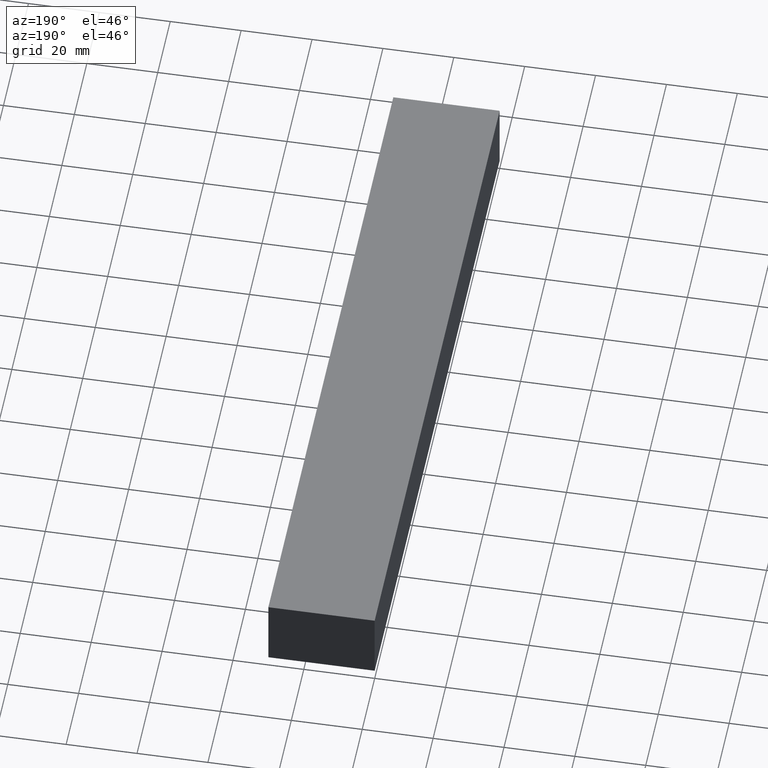
[diagram: clean part render]
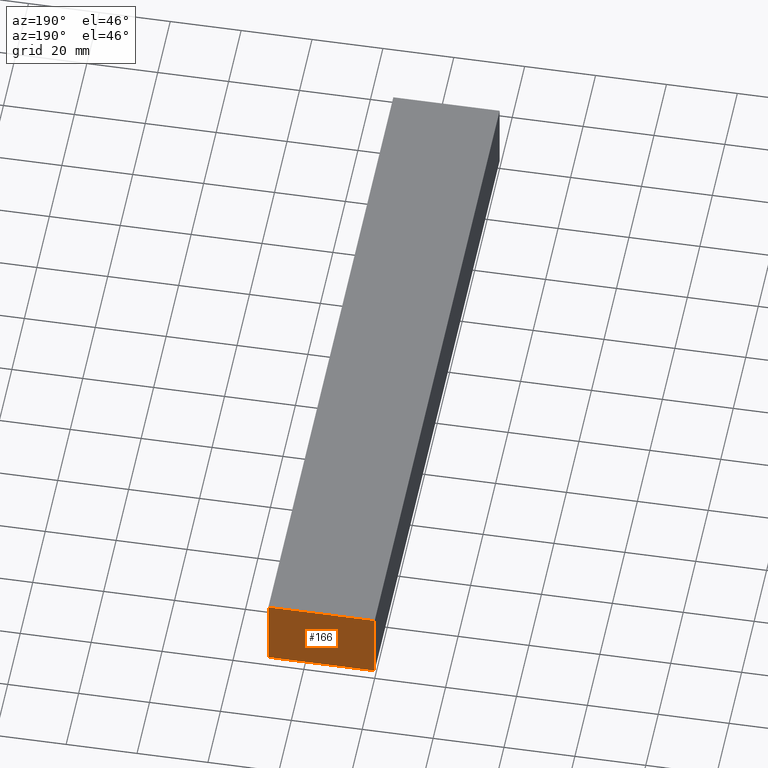
[diagram: same view with one face highlighted and labeled with its STEP entity id]
A machine part, auxiliary view. The second image highlights one B-rep face of the part: STEP entity #166.
In plain terms, the highlighted planar face has unit normal (0, 1, 0).
Its self-contained STEP definition (entity closure, byte-faithful):
#4 = CARTESIAN_POINT ( 'NONE',  ( 30.00000000000000000, 200.0000000000000000, -10.00000000000000000 ) ) ;
#7 = ORIENTED_EDGE ( 'NONE', *, *, #164, .F. ) ;
#8 = CARTESIAN_POINT ( 'NONE',  ( 30.00000000000000000, 200.0000000000000000, -10.00000000000000000 ) ) ;
#9 = DIRECTION ( 'NONE',  ( 0.0000000000000000000, 0.0000000000000000000, 1.000000000000000000 ) ) ;
#10 = LINE ( 'NONE', #123, #193 ) ;
#22 = DIRECTION ( 'NONE',  ( -1.000000000000000000, 0.0000000000000000000, 0.0000000000000000000 ) ) ;
#24 = CARTESIAN_POINT ( 'NONE',  ( 30.00000000000000000, 200.0000000000000000, -10.00000000000000000 ) ) ;
#44 = DIRECTION ( 'NONE',  ( 0.0000000000000000000, 0.0000000000000000000, 1.000000000000000000 ) ) ;
#49 = VECTOR ( 'NONE', #22, 1000.000000000000000 ) ;
#59 = CARTESIAN_POINT ( 'NONE',  ( 0.0000000000000000000, 200.0000000000000000, 10.00000000000000000 ) ) ;
#71 = VERTEX_POINT ( 'NONE', #163 ) ;
#73 = PLANE ( 'NONE',  #80 ) ;
#74 = EDGE_CURVE ( 'NONE', #71, #100, #129, .T. ) ;
#80 = AXIS2_PLACEMENT_3D ( 'NONE', #8, #149, #9 ) ;
#82 = ORIENTED_EDGE ( 'NONE', *, *, #135, .T. ) ;
#83 = VECTOR ( 'NONE', #175, 1000.000000000000000 ) ;
#92 = VERTEX_POINT ( 'NONE', #216 ) ;
#94 = CARTESIAN_POINT ( 'NONE',  ( 30.00000000000000000, 200.0000000000000000, 10.00000000000000000 ) ) ;
#98 = LINE ( 'NONE', #128, #235 ) ;
#100 = VERTEX_POINT ( 'NONE', #59 ) ;
#123 = CARTESIAN_POINT ( 'NONE',  ( 0.0000000000000000000, 200.0000000000000000, -10.00000000000000000 ) ) ;
#128 = CARTESIAN_POINT ( 'NONE',  ( 30.00000000000000000, 200.0000000000000000, -10.00000000000000000 ) ) ;
#129 = LINE ( 'NONE', #94, #83 ) ;
#135 = EDGE_CURVE ( 'NONE', #158, #92, #234, .T. ) ;
#140 = FACE_OUTER_BOUND ( 'NONE', #199, .T. ) ;
#149 = DIRECTION ( 'NONE',  ( 0.0000000000000000000, 1.000000000000000000, -0.0000000000000000000 ) ) ;
#150 = EDGE_CURVE ( 'NONE', #92, #100, #10, .T. ) ;
#158 = VERTEX_POINT ( 'NONE', #24 ) ;
#163 = CARTESIAN_POINT ( 'NONE',  ( 30.00000000000000000, 200.0000000000000000, 10.00000000000000000 ) ) ;
#164 = EDGE_CURVE ( 'NONE', #158, #71, #98, .T. ) ;
#166 = ADVANCED_FACE ( 'NONE', ( #140 ), #73, .T. ) ;
#174 = ORIENTED_EDGE ( 'NONE', *, *, #150, .T. ) ;
#175 = DIRECTION ( 'NONE',  ( -1.000000000000000000, 0.0000000000000000000, 0.0000000000000000000 ) ) ;
#193 = VECTOR ( 'NONE', #44, 1000.000000000000000 ) ;
#199 = EDGE_LOOP ( 'NONE', ( #238, #7, #82, #174 ) ) ;
#216 = CARTESIAN_POINT ( 'NONE',  ( 0.0000000000000000000, 200.0000000000000000, -10.00000000000000000 ) ) ;
#219 = DIRECTION ( 'NONE',  ( 0.0000000000000000000, 0.0000000000000000000, 1.000000000000000000 ) ) ;
#234 = LINE ( 'NONE', #4, #49 ) ;
#235 = VECTOR ( 'NONE', #219, 1000.000000000000000 ) ;
#238 = ORIENTED_EDGE ( 'NONE', *, *, #74, .F. ) ;